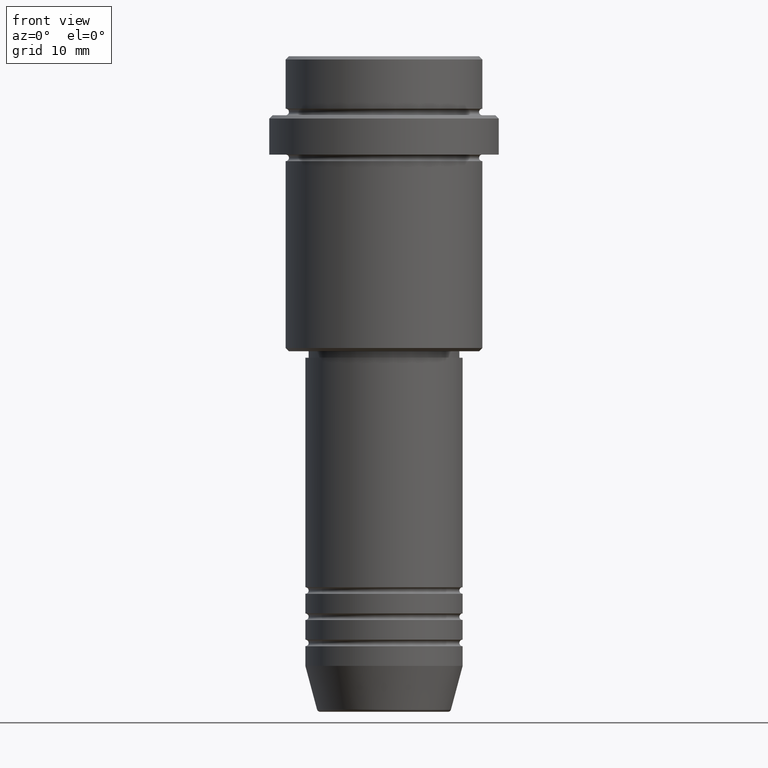
[diagram: clean part render]
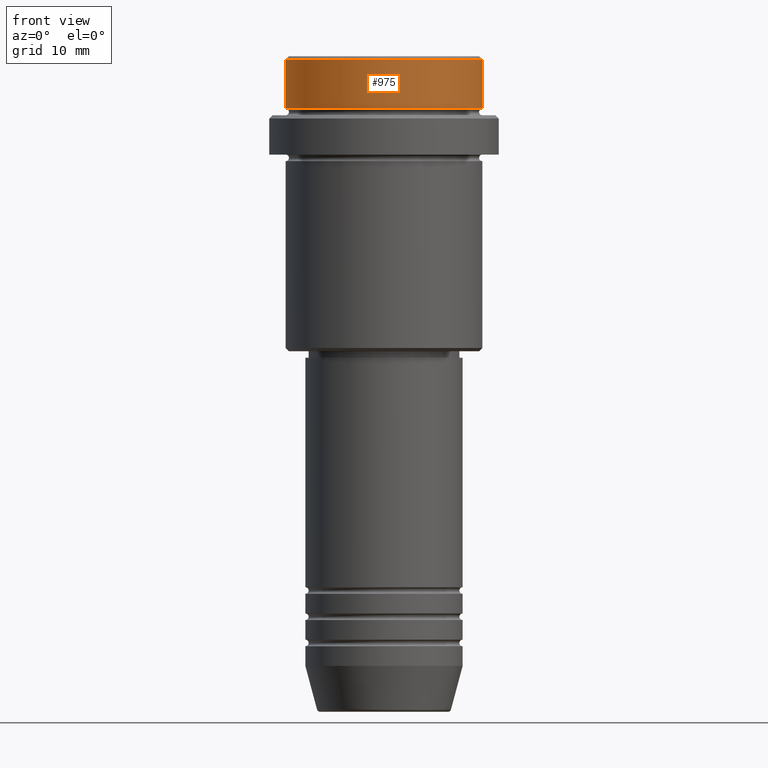
[diagram: same view with one face highlighted and labeled with its STEP entity id]
A machine part, front view. The second image highlights one B-rep face of the part: STEP entity #975.
In plain terms, the highlighted cylindrical surface (partial cylindrical patch) has radius 15 mm, axis along (-0, -0, 1).
Its self-contained STEP definition (entity closure, byte-faithful):
#55 = CARTESIAN_POINT ( 'NONE',  ( -15.00000000000000000, 1.836970198721029589E-15, -7.999999999999998224 ) ) ;
#62 = DIRECTION ( 'NONE',  ( -0.000000000000000000, -0.000000000000000000, 1.000000000000000000 ) ) ;
#121 = EDGE_LOOP ( 'NONE', ( #375, #127, #1358, #995 ) ) ;
#127 = ORIENTED_EDGE ( 'NONE', *, *, #301, .T. ) ;
#132 = VECTOR ( 'NONE', #496, 1000.000000000000000 ) ;
#152 = LINE ( 'NONE', #281, #1294 ) ;
#154 = DIRECTION ( 'NONE',  ( 1.000000000000000000, 0.000000000000000000, 0.000000000000000000 ) ) ;
#238 = LINE ( 'NONE', #557, #132 ) ;
#277 = CARTESIAN_POINT ( 'NONE',  ( 0.000000000000000000, 0.000000000000000000, -0.5000000000000108802 ) ) ;
#281 = CARTESIAN_POINT ( 'NONE',  ( 15.00000000000000000, 0.000000000000000000, 0.000000000000000000 ) ) ;
#289 = EDGE_CURVE ( 'NONE', #1109, #720, #1316, .T. ) ;
#301 = EDGE_CURVE ( 'NONE', #591, #331, #969, .T. ) ;
#331 = VERTEX_POINT ( 'NONE', #1097 ) ;
#375 = ORIENTED_EDGE ( 'NONE', *, *, #1347, .F. ) ;
#489 = DIRECTION ( 'NONE',  ( 1.000000000000000000, 0.000000000000000000, 0.000000000000000000 ) ) ;
#493 = CARTESIAN_POINT ( 'NONE',  ( 0.000000000000000000, 0.000000000000000000, 0.000000000000000000 ) ) ;
#496 = DIRECTION ( 'NONE',  ( -0.000000000000000000, -0.000000000000000000, 1.000000000000000000 ) ) ;
#527 = CARTESIAN_POINT ( 'NONE',  ( -15.00000000000000000, 1.836970198721029589E-15, -0.5000000000000108802 ) ) ;
#557 = CARTESIAN_POINT ( 'NONE',  ( -15.00000000000000000, 1.836970198721029589E-15, 0.000000000000000000 ) ) ;
#578 = DIRECTION ( 'NONE',  ( -0.000000000000000000, -0.000000000000000000, 1.000000000000000000 ) ) ;
#585 = DIRECTION ( 'NONE',  ( 1.000000000000000000, 0.000000000000000000, 0.000000000000000000 ) ) ;
#591 = VERTEX_POINT ( 'NONE', #55 ) ;
#603 = EDGE_CURVE ( 'NONE', #331, #1109, #152, .T. ) ;
#624 = DIRECTION ( 'NONE',  ( 0.000000000000000000, 0.000000000000000000, -1.000000000000000000 ) ) ;
#682 = DIRECTION ( 'NONE',  ( -0.000000000000000000, -0.000000000000000000, 1.000000000000000000 ) ) ;
#720 = VERTEX_POINT ( 'NONE', #527 ) ;
#867 = AXIS2_PLACEMENT_3D ( 'NONE', #1144, #62, #489 ) ;
#952 = CARTESIAN_POINT ( 'NONE',  ( 15.00000000000000000, 0.000000000000000000, -0.5000000000000108802 ) ) ;
#969 = CIRCLE ( 'NONE', #867, 15.00000000000000000 ) ;
#975 = ADVANCED_FACE ( 'NONE', ( #1132 ), #1127, .T. ) ;
#992 = AXIS2_PLACEMENT_3D ( 'NONE', #277, #624, #154 ) ;
#995 = ORIENTED_EDGE ( 'NONE', *, *, #289, .T. ) ;
#1097 = CARTESIAN_POINT ( 'NONE',  ( 15.00000000000000000, 0.000000000000000000, -7.999999999999998224 ) ) ;
#1109 = VERTEX_POINT ( 'NONE', #952 ) ;
#1127 = CYLINDRICAL_SURFACE ( 'NONE', #1273, 15.00000000000000000 ) ;
#1132 = FACE_OUTER_BOUND ( 'NONE', #121, .T. ) ;
#1144 = CARTESIAN_POINT ( 'NONE',  ( 0.000000000000000000, 0.000000000000000000, -7.999999999999998224 ) ) ;
#1273 = AXIS2_PLACEMENT_3D ( 'NONE', #493, #682, #585 ) ;
#1294 = VECTOR ( 'NONE', #578, 1000.000000000000000 ) ;
#1316 = CIRCLE ( 'NONE', #992, 15.00000000000000000 ) ;
#1347 = EDGE_CURVE ( 'NONE', #591, #720, #238, .T. ) ;
#1358 = ORIENTED_EDGE ( 'NONE', *, *, #603, .T. ) ;